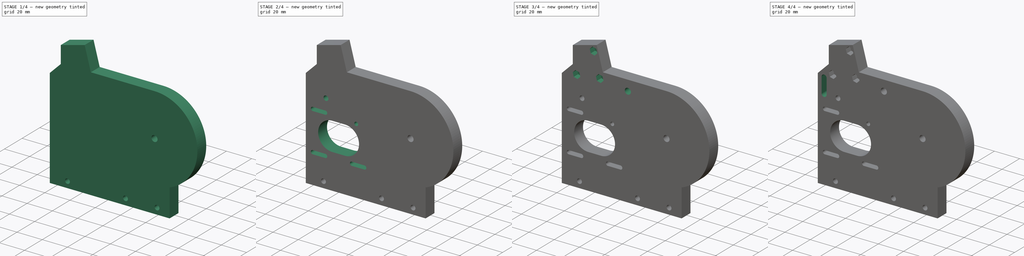
[diagram: build sequence overview — one tinted view per stage of 4, left to right]
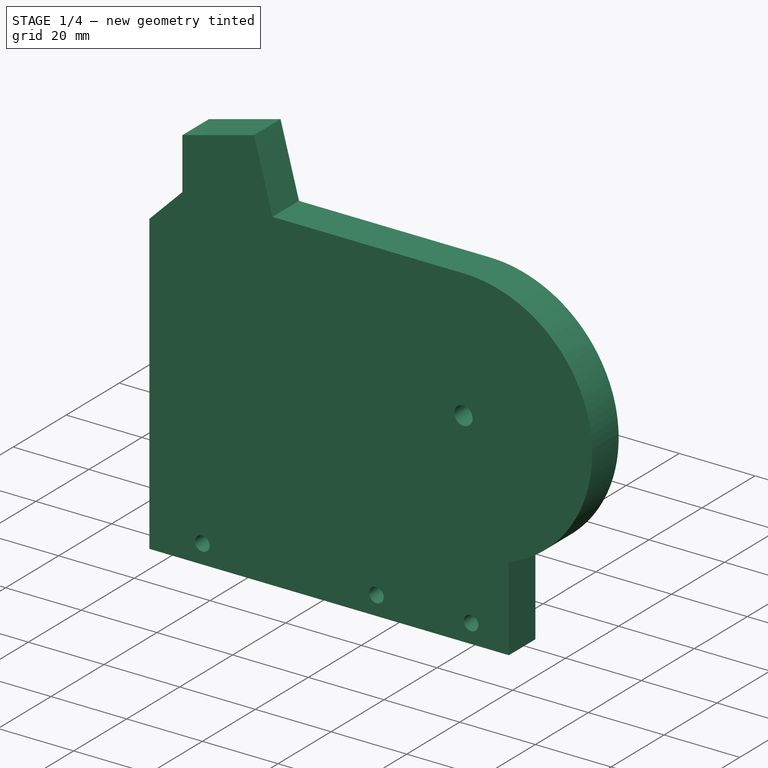
[diagram: stage 1 of 4 — iso view after this stage's code; geometry added in this stage tinted green]
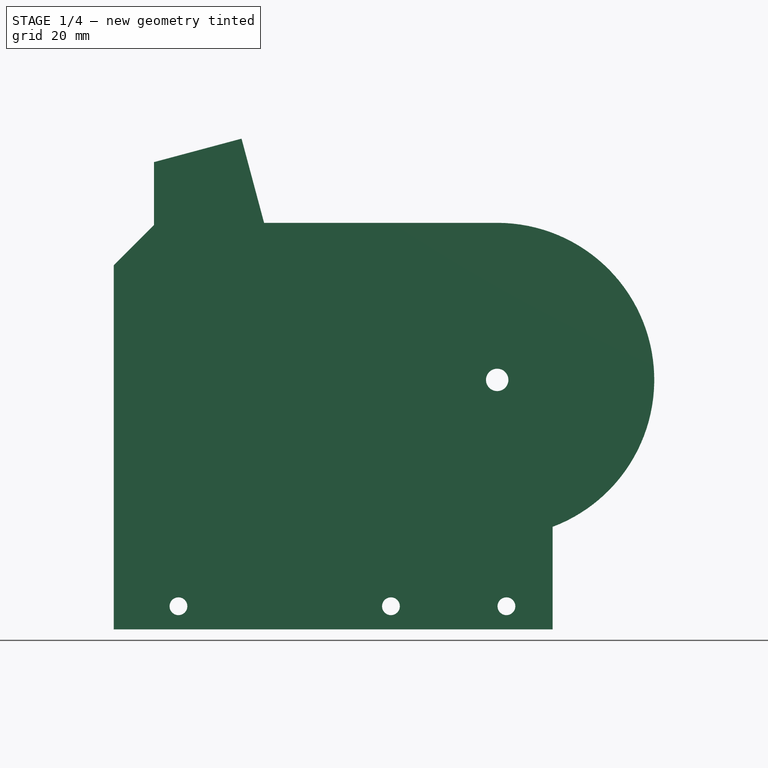
[diagram: stage 1 of 4 — front view after this stage's code; geometry added in this stage tinted green]
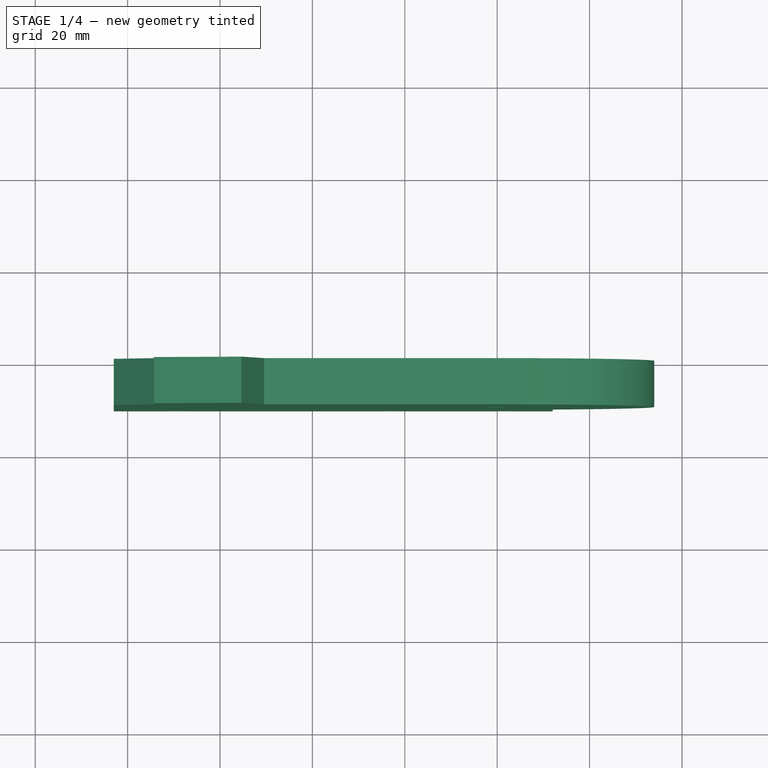
[diagram: stage 1 of 4 — top view after this stage's code; geometry added in this stage tinted green]
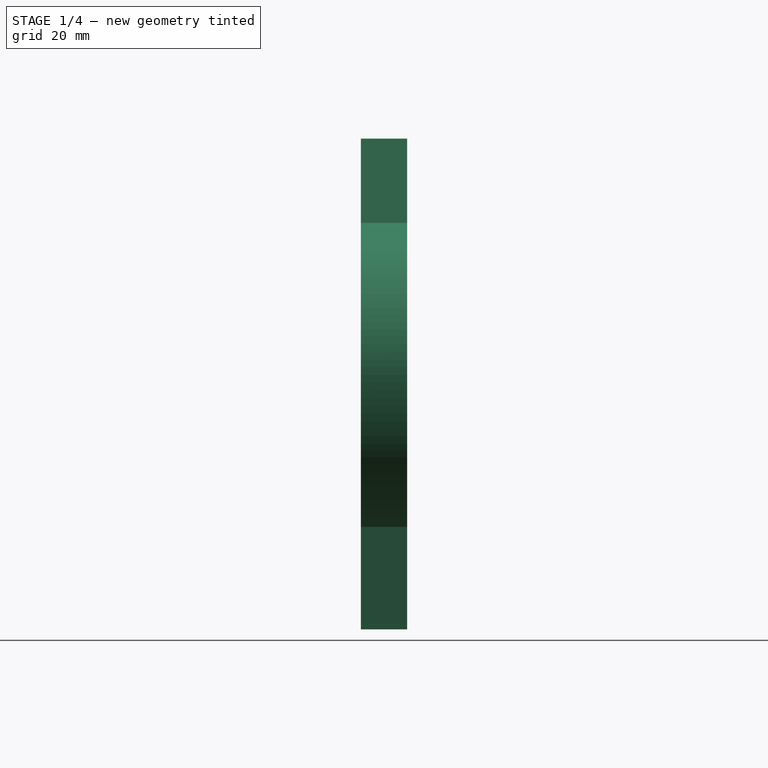
[diagram: stage 1 of 4 — right view after this stage's code; geometry added in this stage tinted green]
FCSTD DOCUMENT  (FreeCAD 0.20R29410 (Git))
Label: #8_MotorsPlateLeft(UNDONE)
License: All rights reserved
LicenseURL: http://en.wikipedia.org/wiki/All_rights_reserved
objects: Sketcher::SketchObject×9, PartDesign::Pocket×8, PartDesign::Pad×1, PartDesign::Body×1
note: 28 computed .brp shape members not serialized (recipe doc carries the construction recipe); baked Part::Feature solids carry a one-line shape summary decoded from their .brp

FEATURE [Sketcher::SketchObject] Sketch
  FullyConstrained = true
  MapMode = 5
  Placement = pos=(0,0,0) rot=(1,0,0;1.5708rad)
  Support = -> [XZ_Plane]
  sketch-geometry (10):
    g0: Circle CenterX=0 CenterY=0 CenterZ=0 NormalX=0 NormalY=0 NormalZ=1 AngleXU=0 Radius=2.425
    g1: ArcOfCircle CenterX=0 CenterY=0 CenterZ=0 NormalX=0 NormalY=0 NormalZ=1 AngleXU=0 Radius=34 StartAngle=5.0731 EndAngle=7.85398
    g2: LineSegment StartX=1.04e-14 StartY=34 StartZ=0 EndX=-50.4621 EndY=34 EndZ=0
    g3: LineSegment StartX=-50.4621 StartY=34 StartZ=0 EndX=-55.3445 EndY=52.2212 EndZ=0
    g4: LineSegment StartX=-55.3445 StartY=52.2212 StartZ=0 EndX=-74.2842 EndY=47.1458 EndZ=0
    g5: LineSegment StartX=-74.2842 StartY=47.1458 StartZ=0 EndX=-74.2842 EndY=33.5438 EndZ=0
    g6: LineSegment StartX=-74.2842 StartY=33.5438 StartZ=0 EndX=-83 EndY=24.828 EndZ=0
    g7: LineSegment StartX=-83 StartY=24.828 StartZ=0 EndX=-83 EndY=-54 EndZ=0
    g8: LineSegment StartX=-83 StartY=-54 StartZ=0 EndX=12 EndY=-54 EndZ=0
    g9: LineSegment StartX=12 StartY=-54 StartZ=0 EndX=12 EndY=-31.8119 EndZ=0
  constraints (28):
    c: Coincident(g0,g-1)
    c: Coincident(g1,g0)
    c: Horizontal(g2)
    c: Coincident(g3,g2)
    c: Coincident(g4,g3)
    c: Coincident(g5,g4)
    c: Coincident(g6,g5)
    c: Coincident(g7,g6)
    c: Vertical(g7)
    c: Coincident(g8,g7)
    c: Horizontal(g8)
    c: Coincident(g9,g8)
    c: Vertical(g9)
    c: Vertical(g5)
    c: Coincident(g9,g1)
    c: Diameter(g0) = 4.85
    c: Diameter(g1) = 68
    c: Distance(g8) = 95
    c: DistanceY(g7,g0) = 54
    c: DistanceX(g7,g0) = 83
    c: Tangent(g2,g1) = -1.5708
    c: Angle(g7,g6) = 2.35619
    c: Distance(g6) = 12.326
    c: Distance(g7) = 78.828
    c: Distance(g5) = 13.602
    c: Distance(g4) = 19.608
    c: Distance(g3) = 18.864
    c: Angle(g2,g3) = 1.8326
FEATURE [PartDesign::Pad] Pad
  Direction = (0,-1,2e-16)
  Length = 10
  Length2 = 10
  Placement = pos=(0,0,0) rot=(1,0,0;1.5708rad)
  Profile = -> Sketch
  ReferenceAxis = -> Sketch [N_Axis]
  Refine = true
  Type = 0
FEATURE [Sketcher::SketchObject] Sketch001
  ExternalGeometry = -> [Pad]
  FullyConstrained = true
  MapMode = 5
  Placement = pos=(0,-10,2.2e-15) rot=(1,0,0;1.5708rad)
  Support = -> [Pad]
  sketch-geometry (5):
    g0: Circle CenterX=-69 CenterY=-49 CenterZ=0 NormalX=0 NormalY=0 NormalZ=1 AngleXU=0 Radius=1.925
    g1: Circle CenterX=-23 CenterY=-49 CenterZ=0 NormalX=0 NormalY=0 NormalZ=1 AngleXU=0 Radius=1.925
    g2: Circle CenterX=2 CenterY=-49 CenterZ=0 NormalX=0 NormalY=0 NormalZ=1 AngleXU=0 Radius=1.925
    g3: LineSegment StartX=-69 StartY=-49 StartZ=0 EndX=-23 EndY=-49 EndZ=0
    g4: LineSegment StartX=-23 StartY=-49 StartZ=0 EndX=2 EndY=-49 EndZ=0
  constraints (13):
    c: Diameter(g2) = 3.85
    c: Equal(g2,g1)
    c: Equal(g0,g1)
    c: Coincident(g3,g0)
    c: Coincident(g3,g1)
    c: Horizontal(g3)
    c: Coincident(g4,g1)
    c: Coincident(g4,g2)
    c: Horizontal(g4)
    c: DistanceY(g-3,g2) = 5
    c: DistanceX(g2,g-3) = 10
    c: Distance(g4) = 25
    c: Distance(g3) = 46
FEATURE [PartDesign::Pocket] Pocket
  BaseFeature = -> Pad
  Direction = (0,1,-2e-16)
  Length = 12
  Length2 = 5
  Placement = pos=(0,0,0) rot=(1,0,0;1.5708rad)
  Profile = -> Sketch001
  ReferenceAxis = -> Sketch001 [N_Axis]
  Refine = true
  Type = 0
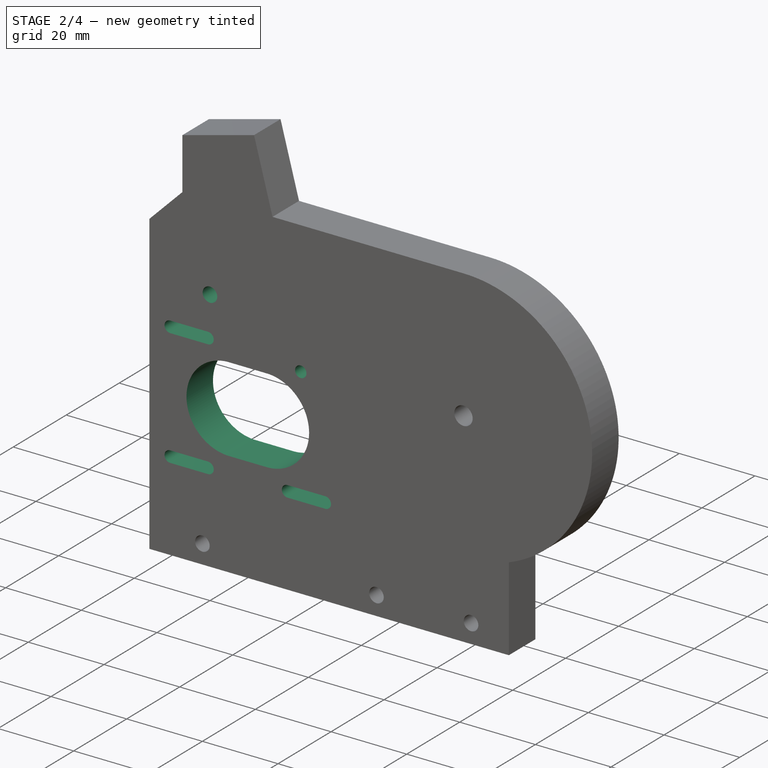
[diagram: stage 2 of 4 — iso view after this stage's code; geometry added in this stage tinted green]
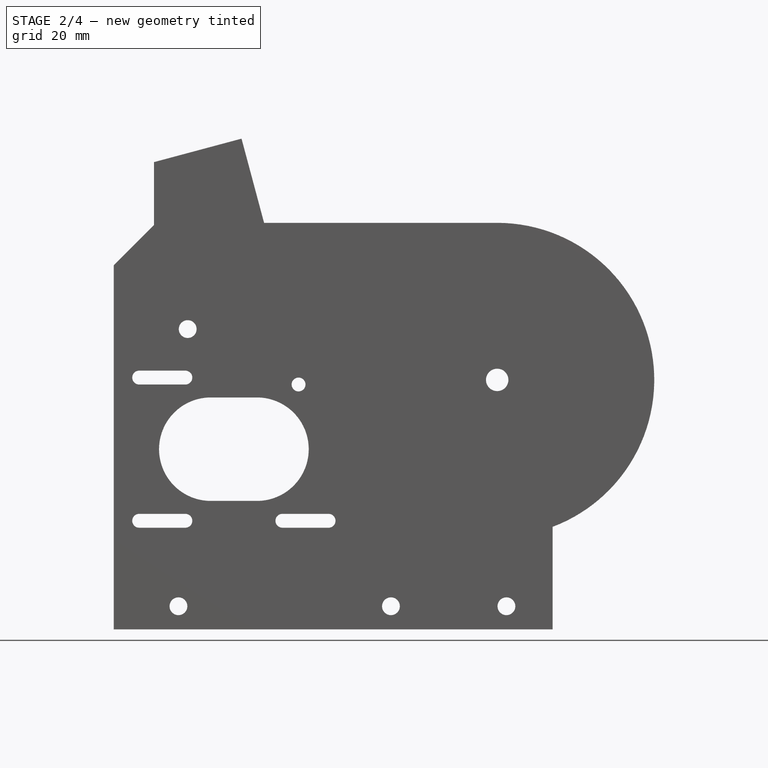
[diagram: stage 2 of 4 — front view after this stage's code; geometry added in this stage tinted green]
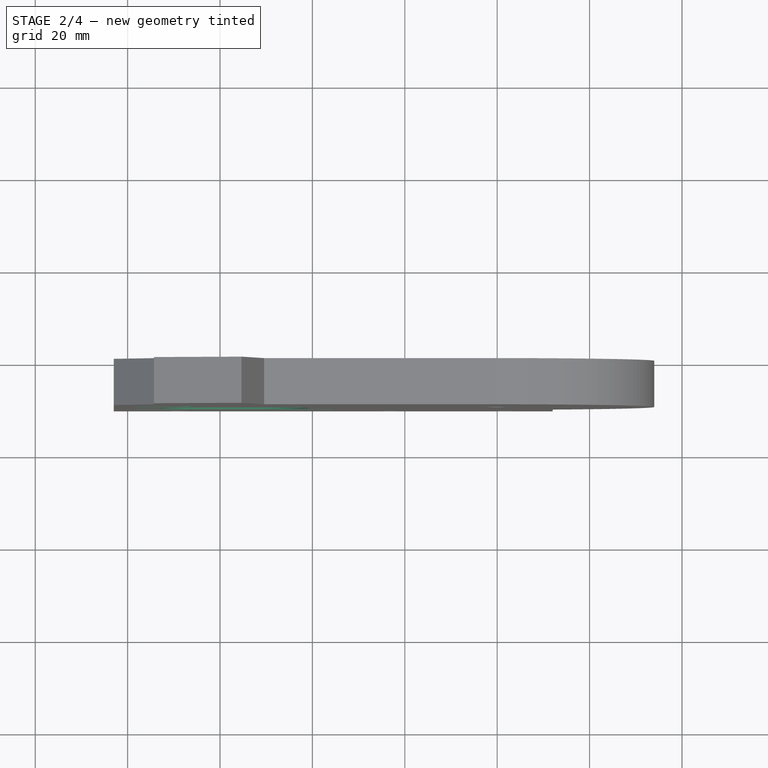
[diagram: stage 2 of 4 — top view after this stage's code; geometry added in this stage tinted green]
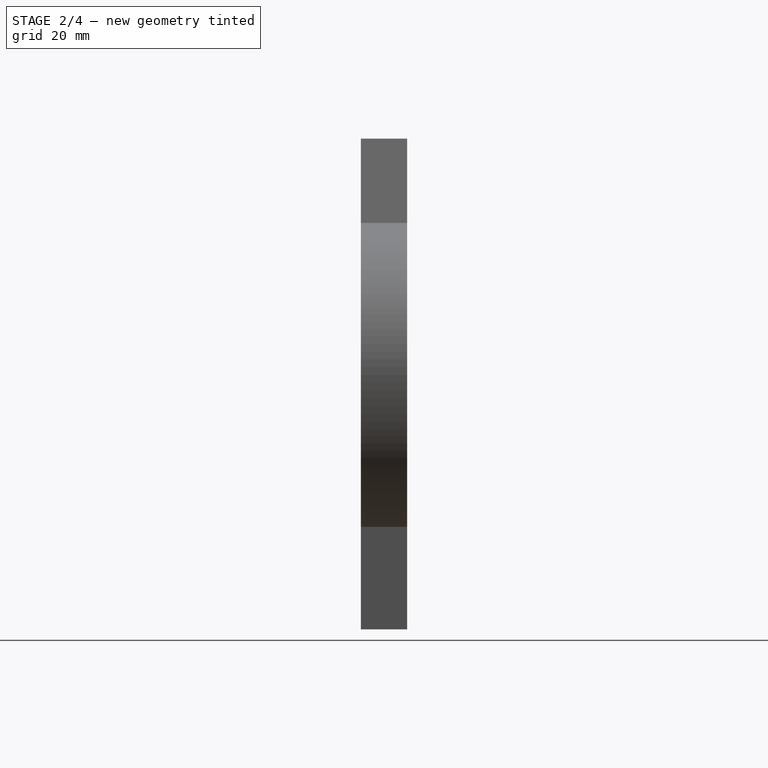
[diagram: stage 2 of 4 — right view after this stage's code; geometry added in this stage tinted green]
FEATURE [Sketcher::SketchObject] Sketch002
  FullyConstrained = true
  MapMode = 5
  Placement = pos=(0,-10,2.2e-15) rot=(1,0,0;1.5708rad)
  Support = -> [Pocket]
  sketch-geometry (22):
    g0: ArcOfCircle CenterX=-62 CenterY=-15 CenterZ=0 NormalX=0 NormalY=0 NormalZ=1 AngleXU=0 Radius=11.2 StartAngle=1.5708 EndAngle=4.71239
    g1: ArcOfCircle CenterX=-52 CenterY=-15 CenterZ=0 NormalX=0 NormalY=0 NormalZ=1 AngleXU=0 Radius=11.2 StartAngle=4.71239 EndAngle=7.85398
    g2: LineSegment StartX=-62 StartY=-26.2 StartZ=0 EndX=-52 EndY=-26.2 EndZ=0
    g3: LineSegment StartX=-52 StartY=-3.8 StartZ=0 EndX=-62 EndY=-3.8 EndZ=0
    g4: ArcOfCircle CenterX=-77.5 CenterY=-30.5 CenterZ=0 NormalX=0 NormalY=0 NormalZ=1 AngleXU=0 Radius=1.5 StartAngle=1.5708 EndAngle=4.71239
    g5: ArcOfCircle CenterX=-67.5 CenterY=-30.5 CenterZ=0 NormalX=0 NormalY=0 NormalZ=1 AngleXU=0 Radius=1.5 StartAngle=4.71239 EndAngle=7.85398
    g6: LineSegment StartX=-77.5 StartY=-32 StartZ=0 EndX=-67.5 EndY=-32 EndZ=0
    g7: LineSegment StartX=-67.5 StartY=-29 StartZ=0 EndX=-77.5 EndY=-29 EndZ=0
    g8: ArcOfCircle CenterX=-46.5 CenterY=-30.5 CenterZ=0 NormalX=0 NormalY=0 NormalZ=1 AngleXU=0 Radius=1.5 StartAngle=1.5708 EndAngle=4.71239
    g9: ArcOfCircle CenterX=-36.5 CenterY=-30.5 CenterZ=0 NormalX=0 NormalY=0 NormalZ=1 AngleXU=0 Radius=1.5 StartAngle=4.71239 EndAngle=7.85398
    g10: LineSegment StartX=-46.5 StartY=-32 StartZ=0 EndX=-36.5 EndY=-32 EndZ=0
    g11: LineSegment StartX=-36.5 StartY=-29 StartZ=0 EndX=-46.5 EndY=-29 EndZ=0
    g12: ArcOfCircle CenterX=-77.5 CenterY=0.5 CenterZ=0 NormalX=0 NormalY=0 NormalZ=1 AngleXU=0 Radius=1.5 StartAngle=1.5708 EndAngle=4.71239
    g13: ArcOfCircle CenterX=-67.5 CenterY=0.5 CenterZ=0 NormalX=0 NormalY=0 NormalZ=1 AngleXU=0 Radius=1.5 StartAngle=4.71239 EndAngle=7.85398
    g14: LineSegment StartX=-77.5 StartY=-1 StartZ=0 EndX=-67.5 EndY=-1 EndZ=0
    g15: LineSegment StartX=-67.5 StartY=2 StartZ=0 EndX=-77.5 EndY=2 EndZ=0
    g16: Circle CenterX=-43 CenterY=-1 CenterZ=0 NormalX=0 NormalY=0 NormalZ=1 AngleXU=0 Radius=1.5
    g17: LineSegment StartX=-67.5 StartY=-30.5 StartZ=0 EndX=-52 EndY=-15 EndZ=0
    g18: LineSegment StartX=-36.5 StartY=-30.5 StartZ=0 EndX=-52 EndY=-15 EndZ=0
    g19: LineSegment StartX=-52 StartY=-15 StartZ=0 EndX=-67.5 EndY=0.5 EndZ=0
    g20: LineSegment StartX=-67.5 StartY=-30.5 StartZ=0 EndX=-46.5 EndY=-30.5 EndZ=0
    g21: LineSegment StartX=-67.5 StartY=-30.5 StartZ=0 EndX=-67.5 EndY=0.5 EndZ=0
  constraints (53):
    c: Tangent(g0,g2) = -1.5708
    c: Tangent(g2,g1) = -1.5708
    c: Tangent(g1,g3) = -1.5708
    c: Tangent(g3,g0) = -1.5708
    c: Equal(g0,g1)
    c: Horizontal(g2)
    c: Diameter(g1) = 22.4
    c: Distance(g0,g1) = 10
    c: DistanceY(g1,g-1) = 15
    c: DistanceX(g1,g-1) = 52
    c: Tangent(g4,g6) = -1.5708
    c: Tangent(g6,g5) = -1.5708
    c: Tangent(g5,g7) = -1.5708
    c: Tangent(g7,g4) = -1.5708
    c: Equal(g4,g5)
    c: Horizontal(g6)
    c: Tangent(g8,g10) = -1.5708
    c: Tangent(g10,g9) = -1.5708
    c: Tangent(g9,g11) = -1.5708
    c: Tangent(g11,g8) = -1.5708
    c: Equal(g8,g9)
    c: Horizontal(g10)
    c: Tangent(g12,g14) = -1.5708
    c: Tangent(g14,g13) = -1.5708
    c: Tangent(g13,g15) = -1.5708
    c: Tangent(g15,g12) = -1.5708
    c: Equal(g12,g13)
    c: Horizontal(g14)
    c: Distance(g12,g13) = 10
    c: Distance(g4,g5) = 10
    c: Distance(g8,g9) = 10
    c: Diameter(g5) = 3
    c: Diameter(g9) = 3
    c: Diameter(g13) = 3
    c: Coincident(g17,g5)
    c: Coincident(g17,g1)
    c: Coincident(g18,g9)
    c: Coincident(g18,g1)
    c: Coincident(g19,g1)
    c: Coincident(g19,g13)
    c: Equal(g19,g17)
    c: Equal(g18,g19)
    c: DistanceY(g5,g13) = 31
    c: DistanceX(g5,g9) = 31
    c: Coincident(g20,g5)
    c: Coincident(g20,g8)
    c: Horizontal(g20)
    c: Coincident(g21,g5)
    c: Coincident(g21,g13)
    c: Vertical(g21)
    c: Diameter(g16) = 3
    c: DistanceY(g16,g-1) = 1
    c: DistanceX(g16,g-1) = 43
FEATURE [PartDesign::Pocket] Pocket001
  BaseFeature = -> Pocket
  Direction = (0,1,-2e-16)
  Length = 12
  Length2 = 5
  Placement = pos=(0,0,0) rot=(1,0,0;1.5708rad)
  Profile = -> Sketch002
  ReferenceAxis = -> Sketch002 [N_Axis]
  Refine = true
  Type = 0
FEATURE [Sketcher::SketchObject] Sketch003
  ExternalGeometry = -> [Pocket001]
  FullyConstrained = true
  MapMode = 5
  Placement = pos=(0,-10,2.2e-15) rot=(1,0,0;1.5708rad)
  Support = -> [Pocket001]
  sketch-geometry (1):
    g0: Circle CenterX=-67 CenterY=11 CenterZ=0 NormalX=0 NormalY=0 NormalZ=1 AngleXU=0 Radius=1.925
  constraints (3):
    c: Diameter(g0) = 3.85
    c: DistanceX(g0,g-4) = 79
    c: DistanceY(g-4,g0) = 65
FEATURE [PartDesign::Pocket] Pocket002
  BaseFeature = -> Pocket001
  Direction = (0,1,-2e-16)
  Length = 12
  Length2 = 5
  Placement = pos=(0,0,0) rot=(1,0,0;1.5708rad)
  Profile = -> Sketch003
  ReferenceAxis = -> Sketch003 [N_Axis]
  Refine = true
  Type = 0
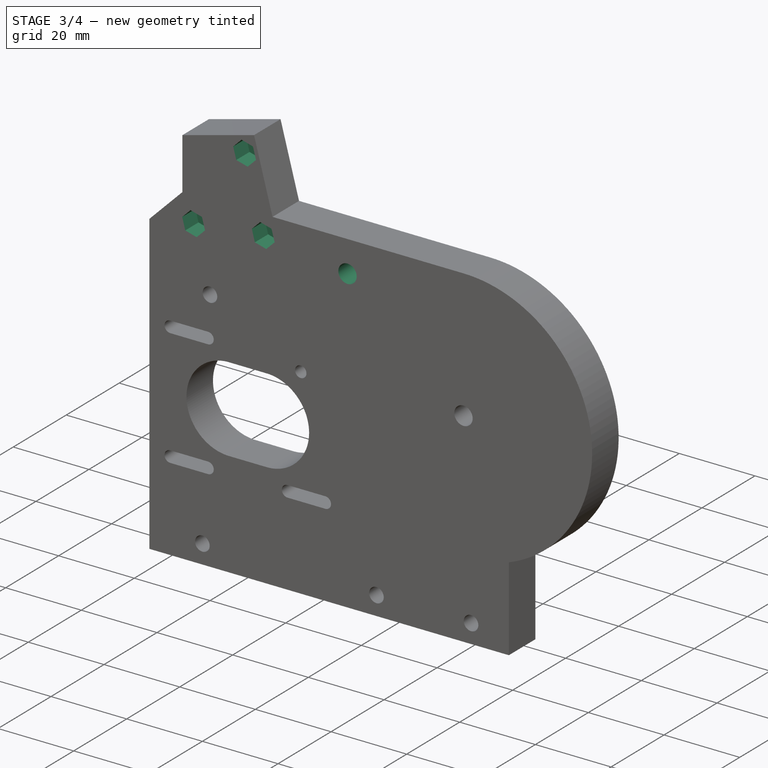
[diagram: stage 3 of 4 — iso view after this stage's code; geometry added in this stage tinted green]
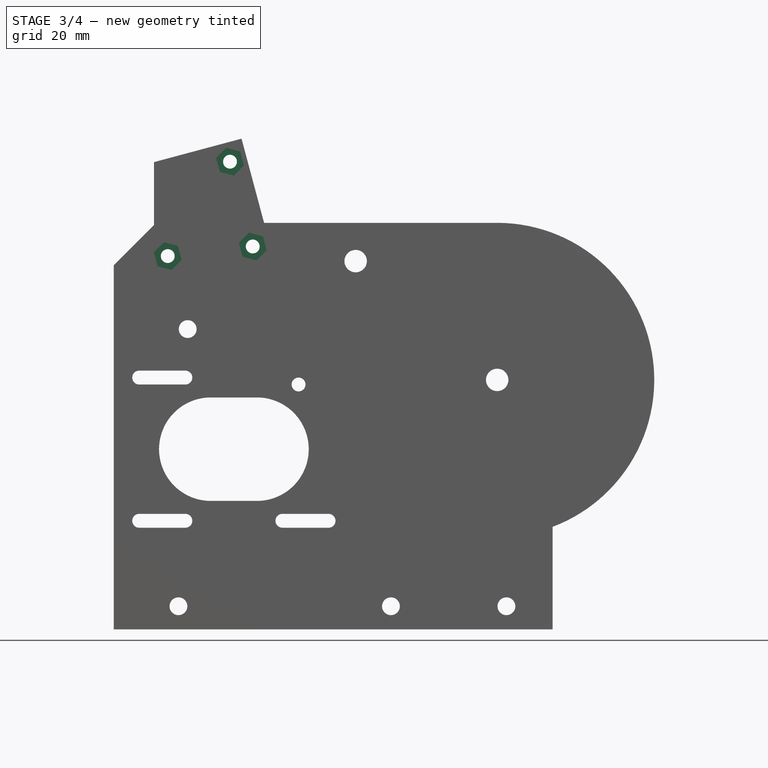
[diagram: stage 3 of 4 — front view after this stage's code; geometry added in this stage tinted green]
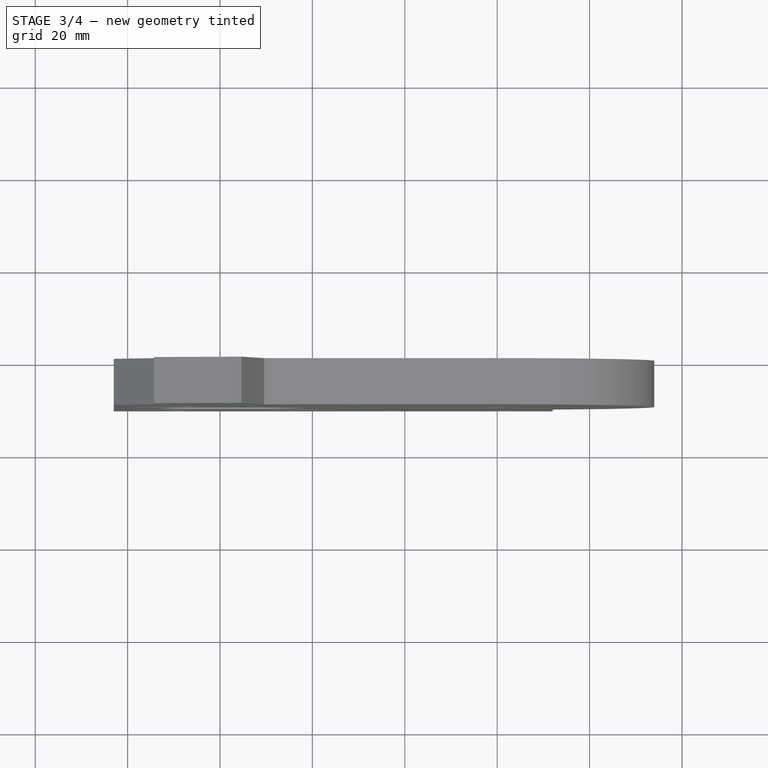
[diagram: stage 3 of 4 — top view after this stage's code; geometry added in this stage tinted green]
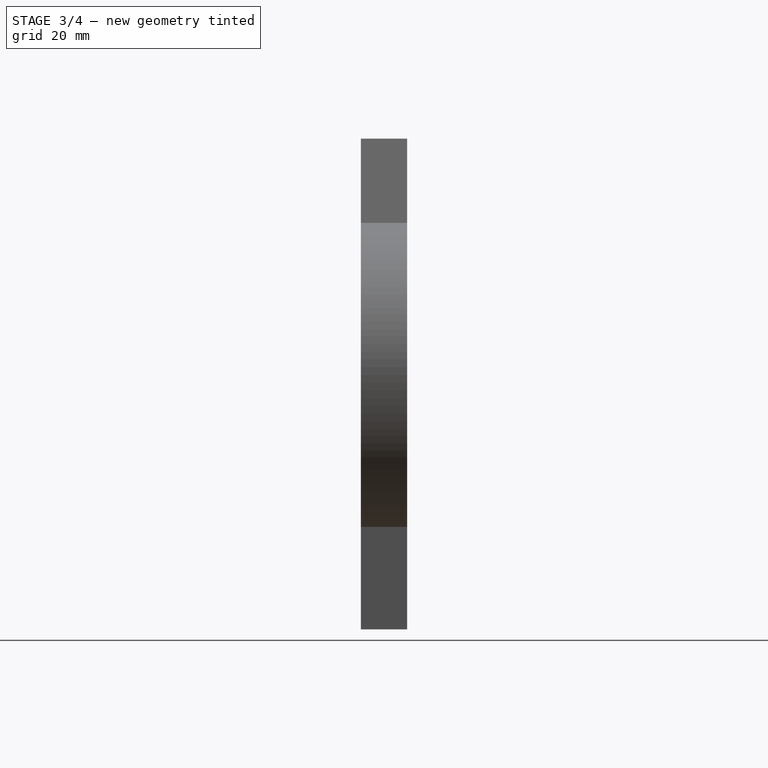
[diagram: stage 3 of 4 — right view after this stage's code; geometry added in this stage tinted green]
FEATURE [Sketcher::SketchObject] Sketch004
  FullyConstrained = true
  MapMode = 5
  Placement = pos=(0,-10,2.2e-15) rot=(1,0,0;1.5708rad)
  Support = -> [Pocket002]
  sketch-geometry (2):
    g0: Circle CenterX=-30.6418 CenterY=25.7115 CenterZ=0 NormalX=0 NormalY=0 NormalZ=1 AngleXU=0 Radius=2.425
    g1: LineSegment StartX=0 StartY=0 StartZ=0 EndX=-30.6418 EndY=25.7115 EndZ=0
  constraints (5):
    c: Coincident(g1,g-1)
    c: Coincident(g1,g0)
    c: Distance(g1) = 40
    c: Diameter(g0) = 4.85
    c: Angle(g-1,g1) = 2.44346
FEATURE [PartDesign::Pocket] Pocket003
  BaseFeature = -> Pocket002
  Direction = (0,1,-2e-16)
  Length = 12
  Length2 = 5
  Placement = pos=(0,0,0) rot=(1,0,0;1.5708rad)
  Profile = -> Sketch004
  ReferenceAxis = -> Sketch004 [N_Axis]
  Refine = true
  Type = 0
FEATURE [Sketcher::SketchObject] Sketch005
  ExternalGeometry = -> [Pocket003]
  FullyConstrained = true
  MapMode = 5
  Placement = pos=(0,-10,2.2e-15) rot=(1,0,0;1.5708rad)
  Support = -> [Pocket003]
  sketch-geometry (4):
    g0: Circle CenterX=-57.8388 CenterY=47.2346 CenterZ=0 NormalX=0 NormalY=0 NormalZ=1 AngleXU=0 Radius=1.5
    g1: Circle CenterX=-52.9213 CenterY=28.882 CenterZ=0 NormalX=0 NormalY=0 NormalZ=1 AngleXU=0 Radius=1.5
    g2: Circle CenterX=-71.317 CenterY=26.8 CenterZ=0 NormalX=0 NormalY=0 NormalZ=1 AngleXU=0 Radius=1.5
    g3: LineSegment StartX=-57.8388 StartY=47.2346 StartZ=0 EndX=-52.9213 EndY=28.882 EndZ=0
  constraints (11):
    c: Coincident(g3,g0)
    c: Coincident(g3,g1)
    c: Parallel(g3,g-3)
    c: Distance(g3) = 19
    c: Distance(g0,g-3) = 3.7
    c: Distance(g0,g-4) = 4.171
    c: Diameter(g1) = 3
    c: Diameter(g2) = 3
    c: Diameter(g0) = 3
    c: DistanceY(g-5,g2) = 80.8
    c: DistanceX(g-5,g2) = 11.683
FEATURE [PartDesign::Pocket] Pocket004
  BaseFeature = -> Pocket003
  Direction = (0,1,-2e-16)
  Length = 12
  Length2 = 5
  Placement = pos=(0,0,0) rot=(1,0,0;1.5708rad)
  Profile = -> Sketch005
  ReferenceAxis = -> Sketch005 [N_Axis]
  Refine = true
  Type = 0
FEATURE [Sketcher::SketchObject] Sketch006
  ExternalGeometry = -> [Pocket004]
  FullyConstrained = true
  MapMode = 5
  Placement = pos=(0,-10,2.2e-15) rot=(1,0,0;1.5708rad)
  Support = -> [Pocket004]
  sketch-geometry (21):
    g0: LineSegment StartX=-54.8274 StartY=46.4277 StartZ=0 EndX=-55.6343 EndY=49.4392 EndZ=0
    g1: LineSegment StartX=-55.6343 StartY=49.4392 StartZ=0 EndX=-58.6457 EndY=50.2461 EndZ=0
    g2: LineSegment StartX=-58.6457 StartY=50.2461 StartZ=0 EndX=-60.8503 EndY=48.0415 EndZ=0
    g3: LineSegment StartX=-60.8503 StartY=48.0415 StartZ=0 EndX=-60.0434 EndY=45.0301 EndZ=0
    g4: LineSegment StartX=-60.0434 StartY=45.0301 StartZ=0 EndX=-57.0319 EndY=44.2232 EndZ=0
    g5: LineSegment StartX=-57.0319 StartY=44.2232 StartZ=0 EndX=-54.8274 EndY=46.4277 EndZ=0
    g6: Circle CenterX=-57.8388 CenterY=47.2346 CenterZ=0 NormalX=0 NormalY=0 NormalZ=1 AngleXU=0 Radius=3.11769
    g7: LineSegment StartX=-50.7167 StartY=31.0866 StartZ=0 EndX=-53.7282 EndY=31.8935 EndZ=0
    g8: LineSegment StartX=-53.7282 StartY=31.8935 StartZ=0 EndX=-55.9327 EndY=29.689 EndZ=0
    g9: LineSegment StartX=-55.9327 StartY=29.689 StartZ=0 EndX=-55.1258 EndY=26.6775 EndZ=0
    g10: LineSegment StartX=-55.1258 StartY=26.6775 StartZ=0 EndX=-52.1143 EndY=25.8706 EndZ=0
    g11: LineSegment StartX=-52.1143 StartY=25.8706 StartZ=0 EndX=-49.9098 EndY=28.0751 EndZ=0
    g12: LineSegment StartX=-49.9098 StartY=28.0751 StartZ=0 EndX=-50.7167 EndY=31.0866 EndZ=0
    g13: Circle CenterX=-52.9213 CenterY=28.882 CenterZ=0 NormalX=0 NormalY=0 NormalZ=1 AngleXU=0 Radius=3.11769
    g14: LineSegment StartX=-73.5215 StartY=24.5955 StartZ=0 EndX=-70.5101 EndY=23.7885 EndZ=0
    g15: LineSegment StartX=-70.5101 StartY=23.7885 StartZ=0 EndX=-68.3055 EndY=25.9931 EndZ=0
    g16: LineSegment StartX=-68.3055 StartY=25.9931 StartZ=0 EndX=-69.1125 EndY=29.0045 EndZ=0
    g17: LineSegment StartX=-69.1125 StartY=29.0045 StartZ=0 EndX=-72.1239 EndY=29.8115 EndZ=0
    g18: LineSegment StartX=-72.1239 StartY=29.8115 StartZ=0 EndX=-74.3285 EndY=27.6069 EndZ=0
    g19: LineSegment StartX=-74.3285 StartY=27.6069 StartZ=0 EndX=-73.5215 EndY=24.5955 EndZ=0
    g20: Circle CenterX=-71.317 CenterY=26.8 CenterZ=0 NormalX=0 NormalY=0 NormalZ=1 AngleXU=0 Radius=3.11769
  constraints (48):
    c: Coincident(g0,g1)
    c: Coincident(g1,g2)
    c: Coincident(g2,g3)
    c: Coincident(g3,g4)
    c: Coincident(g4,g5)
    c: Coincident(g5,g0)
    c: Equal(g0, g1-g5) x5
    c: PointOnObject(g0,g6)
    c: PointOnObject(g1,g6)
    c: PointOnObject(g2,g6)
    c: PointOnObject(g3,g6)
    c: PointOnObject(g4,g6)
    c: PointOnObject(g5,g6)
    c: Coincident(g6,g-4)
    c: Coincident(g7,g8)
    c: Coincident(g8,g9)
    c: Coincident(g9,g10)
    c: Coincident(g10,g11)
    c: Coincident(g11,g12)
    c: Coincident(g12,g7)
    c: Equal(g7, g8-g12) x5
    c: PointOnObject(g7,g13)
    c: PointOnObject(g8,g13)
    c: PointOnObject(g9,g13)
    c: PointOnObject(g10,g13)
    c: PointOnObject(g11,g13)
    c: PointOnObject(g12,g13)
    c: Coincident(g13,g-5)
    c: Coincident(g14,g15)
    c: Coincident(g15,g16)
    c: Coincident(g16,g17)
    c: Coincident(g17,g18)
    c: Coincident(g18,g19)
    c: Coincident(g19,g14)
    c: Equal(g14, g15-g19) x5
    c: PointOnObject(g14,g20)
    c: PointOnObject(g15,g20)
    c: PointOnObject(g16,g20)
    c: PointOnObject(g17,g20)
    c: PointOnObject(g18,g20)
    c: PointOnObject(g19,g20)
    c: Coincident(g20,g-6)
    c: Equal(g2,g12)
    c: Equal(g15,g8)
    c: Parallel(g5,g11)
    c: Parallel(g15,g8)
    c: Parallel(g0,g-7)
    c: Distance(g8,g7) = 5.4
FEATURE [PartDesign::Pocket] Pocket005
  BaseFeature = -> Pocket004
  Direction = (0,1,-2e-16)
  Length = 5
  Length2 = 5
  Placement = pos=(0,0,0) rot=(1,0,0;1.5708rad)
  Profile = -> Sketch006
  ReferenceAxis = -> Sketch006 [N_Axis]
  Refine = true
  Type = 0
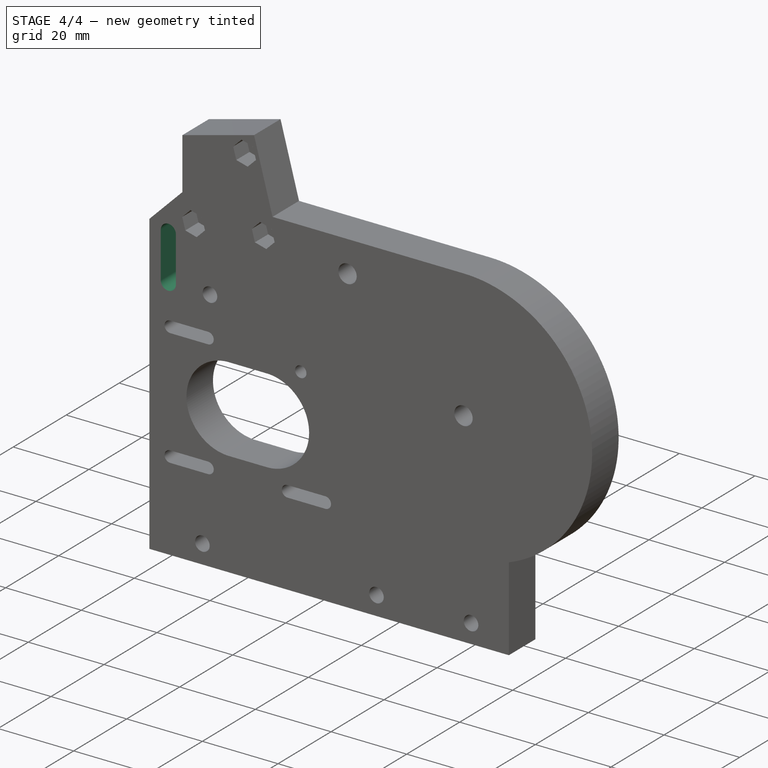
[diagram: stage 4 of 4 — iso view after this stage's code; geometry added in this stage tinted green]
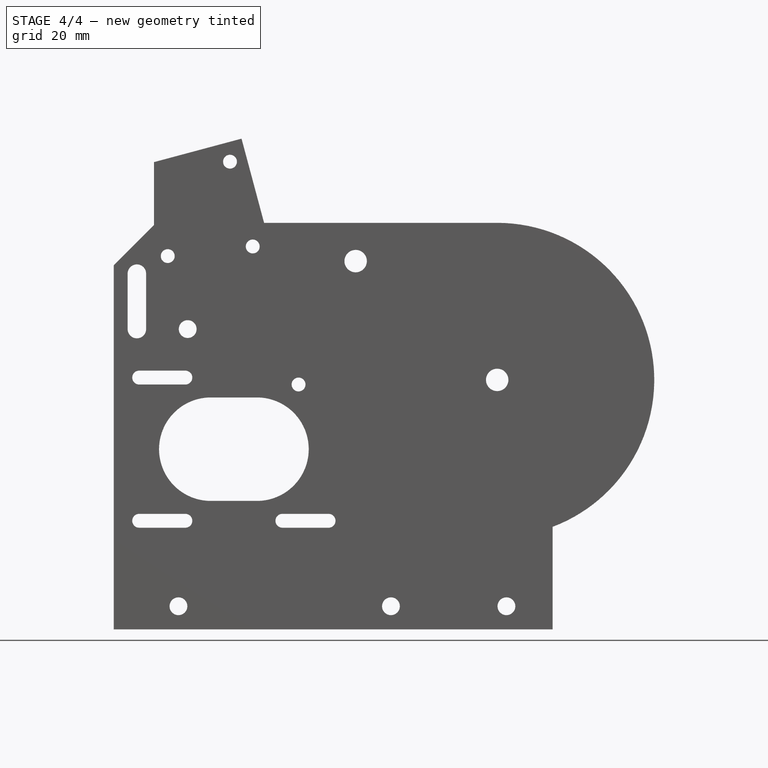
[diagram: stage 4 of 4 — front view after this stage's code; geometry added in this stage tinted green]
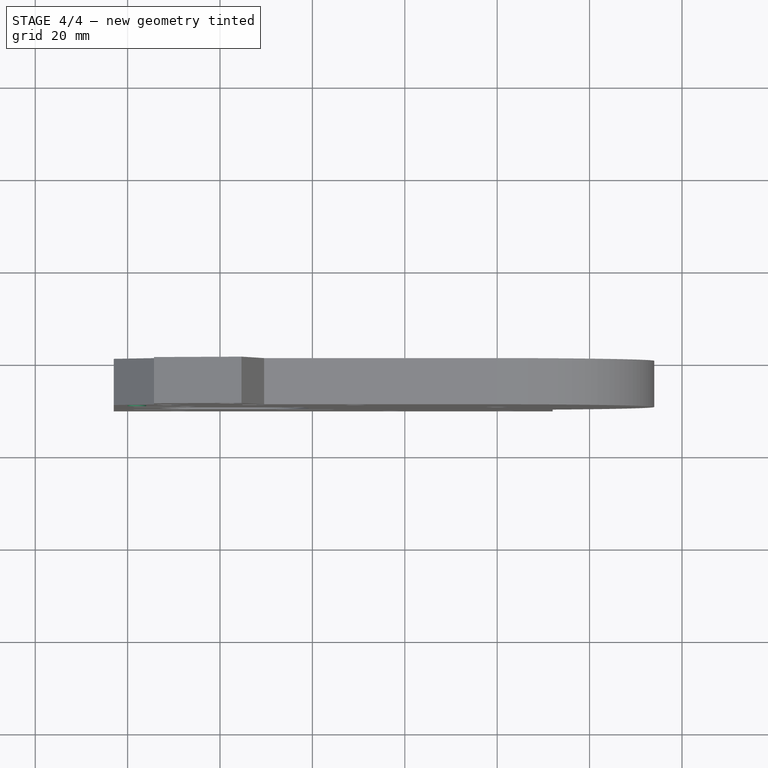
[diagram: stage 4 of 4 — top view after this stage's code; geometry added in this stage tinted green]
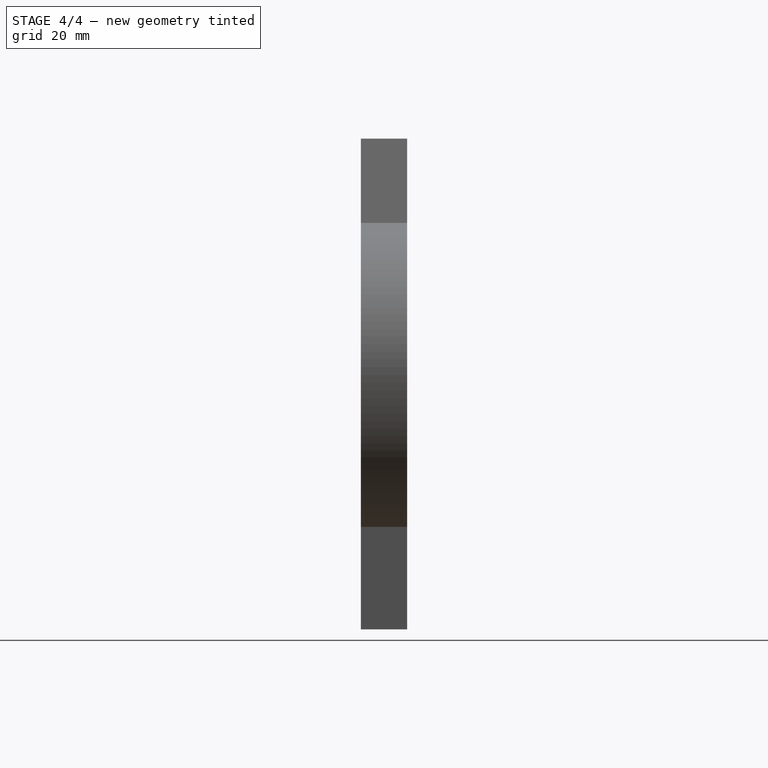
[diagram: stage 4 of 4 — right view after this stage's code; geometry added in this stage tinted green]
FEATURE [Sketcher::SketchObject] Sketch007
  ExternalGeometry = -> [Pocket005]
  FullyConstrained = true
  MapMode = 5
  Placement = pos=(0,-10,2.2e-15) rot=(1,0,0;1.5708rad)
  Support = -> [Pocket005]
  sketch-geometry (4):
    g0: ArcOfCircle CenterX=-78 CenterY=23 CenterZ=0 NormalX=0 NormalY=0 NormalZ=1 AngleXU=0 Radius=2 StartAngle=7e-16 EndAngle=3.14159
    g1: ArcOfCircle CenterX=-78 CenterY=11 CenterZ=0 NormalX=0 NormalY=0 NormalZ=1 AngleXU=0 Radius=2 StartAngle=3.14159 EndAngle=6.28319
    g2: LineSegment StartX=-80 StartY=23 StartZ=0 EndX=-80 EndY=11 EndZ=0
    g3: LineSegment StartX=-76 StartY=11 StartZ=0 EndX=-76 EndY=23 EndZ=0
  constraints (10):
    c: Tangent(g0,g2) = -1.5708
    c: Tangent(g2,g1) = -1.5708
    c: Tangent(g1,g3) = -1.5708
    c: Tangent(g3,g0) = -1.5708
    c: Equal(g0,g1)
    c: Vertical(g2)
    c: Diameter(g0) = 4
    c: Distance(g0,g1) = 12
    c: DistanceY(g-3,g1) = 65
    c: DistanceX(g-3,g1) = 5
FEATURE [PartDesign::Pocket] Pocket006
  BaseFeature = -> Pocket005
  Direction = (0,1,-2e-16)
  Length = 12
  Length2 = 5
  Placement = pos=(0,0,0) rot=(1,0,0;1.5708rad)
  Profile = -> Sketch007
  ReferenceAxis = -> Sketch007 [N_Axis]
  Refine = true
  Type = 0
FEATURE [Sketcher::SketchObject] Sketch008
  ExternalGeometry = -> [Pocket006]
  FullyConstrained = true
  MapMode = 5
  Placement = pos=(0,0,0) rot=(-1,0,0;1.5708rad)
  Support = -> [Pocket006]
  sketch-geometry (7):
    g0: LineSegment StartX=-40.3 StartY=-0.558846 StartZ=0 EndX=-40.3 EndY=2.55885 EndZ=0
    g1: LineSegment StartX=-40.3 StartY=2.55885 StartZ=0 EndX=-43 EndY=4.11769 EndZ=0
    g2: LineSegment StartX=-43 StartY=4.11769 StartZ=0 EndX=-45.7 EndY=2.55885 EndZ=0
    g3: LineSegment StartX=-45.7 StartY=2.55885 StartZ=0 EndX=-45.7 EndY=-0.558846 EndZ=0
    g4: LineSegment StartX=-45.7 StartY=-0.558846 StartZ=0 EndX=-43 EndY=-2.11769 EndZ=0
    g5: LineSegment StartX=-43 StartY=-2.11769 StartZ=0 EndX=-40.3 EndY=-0.558846 EndZ=0
    g6: Circle CenterX=-43 CenterY=1 CenterZ=0 NormalX=0 NormalY=0 NormalZ=1 AngleXU=0 Radius=3.11769
  constraints (16):
    c: Coincident(g0,g1)
    c: Coincident(g1,g2)
    c: Coincident(g2,g3)
    c: Coincident(g3,g4)
    c: Coincident(g4,g5)
    c: Coincident(g5,g0)
    c: Equal(g0, g1-g5) x5
    c: PointOnObject(g0,g6)
    c: PointOnObject(g1,g6)
    c: PointOnObject(g2,g6)
    c: PointOnObject(g3,g6)
    c: PointOnObject(g4,g6)
    c: PointOnObject(g5,g6)
    c: Coincident(g6,g-3)
    c: Distance(g3,g0) = 5.4
    c: Parallel(g0,g-2)
FEATURE [PartDesign::Pocket] Pocket007
  BaseFeature = -> Pocket006
  Direction = (0,-1,2e-16)
  Length = 6
  Length2 = 5
  Placement = pos=(0,0,0) rot=(1,0,0;1.5708rad)
  Profile = -> Sketch008
  ReferenceAxis = -> Sketch008 [N_Axis]
  Refine = true
  Type = 0
FEATURE [PartDesign::Body] Body
  Group = -> [Sketch,Pad,Sketch001,Pocket,Sketch002,Pocket001,Sketch003,Pocket002,Sketch004,Pocket003,Sketch005,Pocket004,Sketch006,Pocket005,Sketch007,Pocket006,Sketch008,Pocket007]
  Origin = -> Origin
  Tip = -> Pocket007
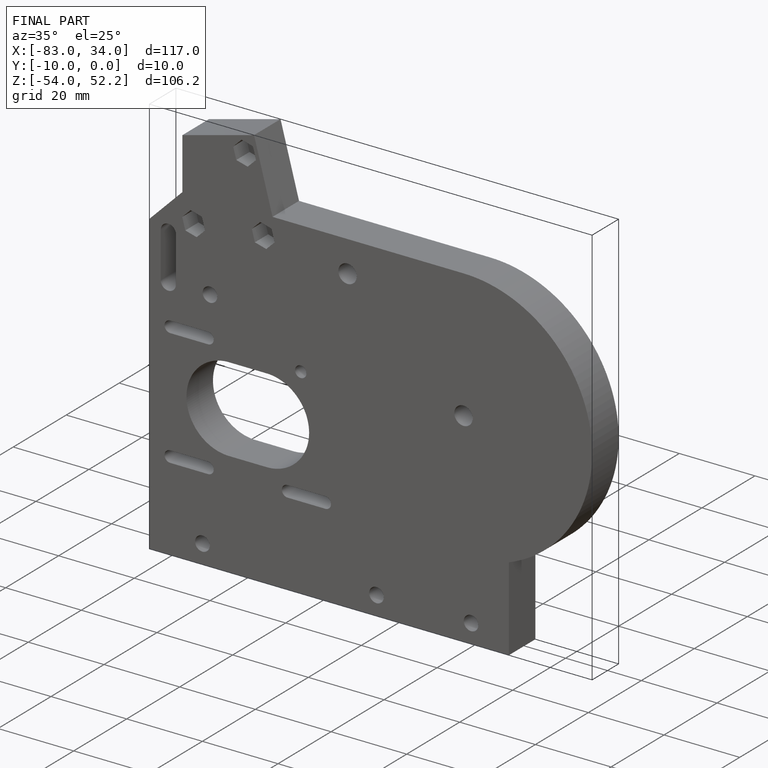
[diagram: finished part — iso view with bounding-box wireframe]
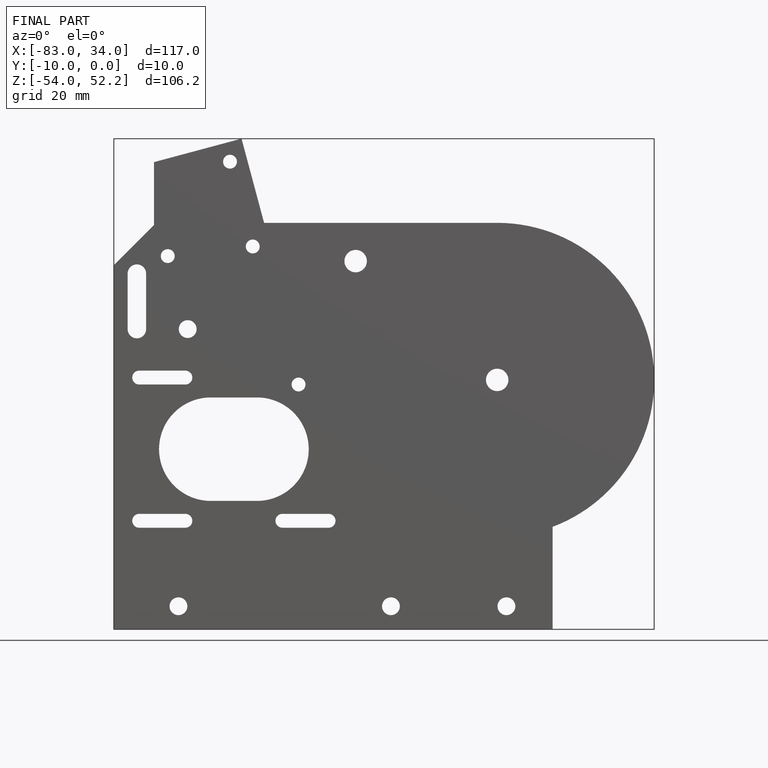
[diagram: finished part — front view with bounding-box wireframe]
